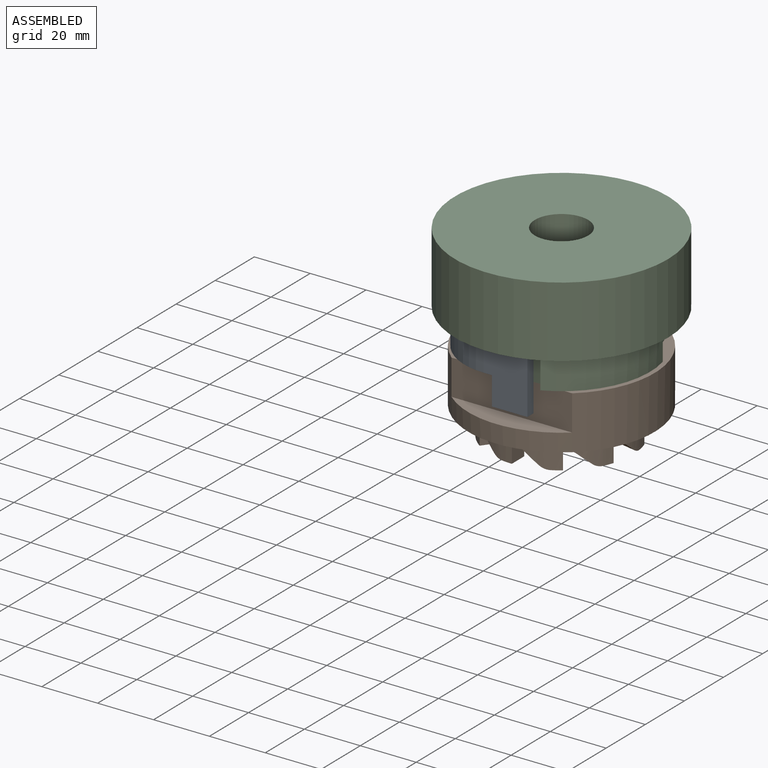
[diagram: assembled view]
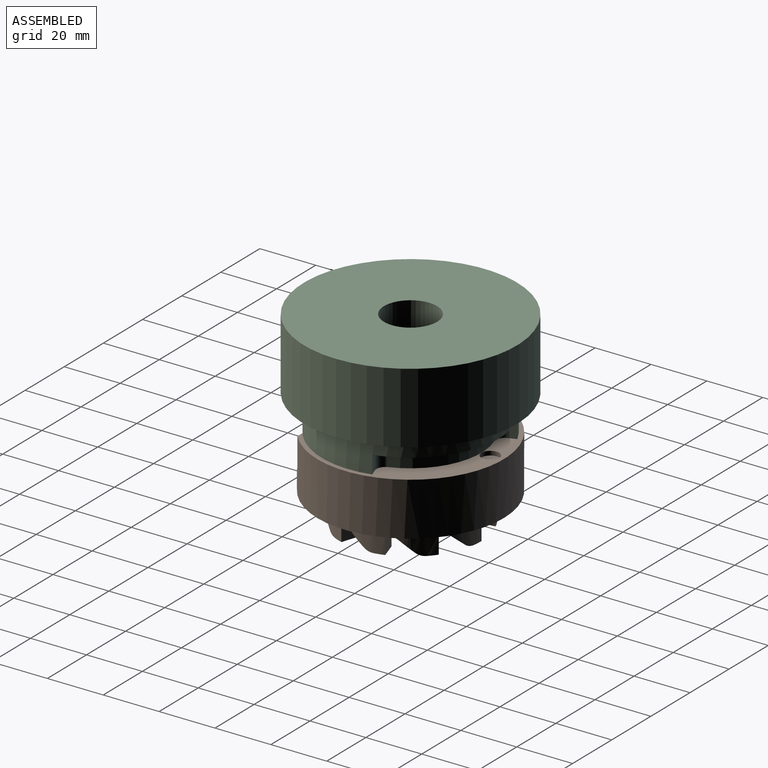
[diagram: assembled view, second angle]
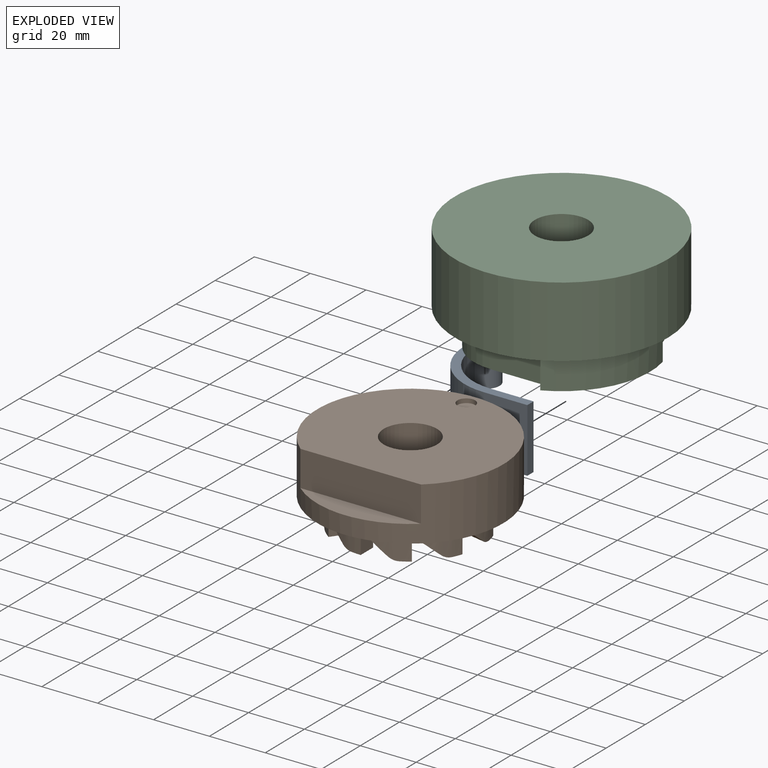
[diagram: exploded view]
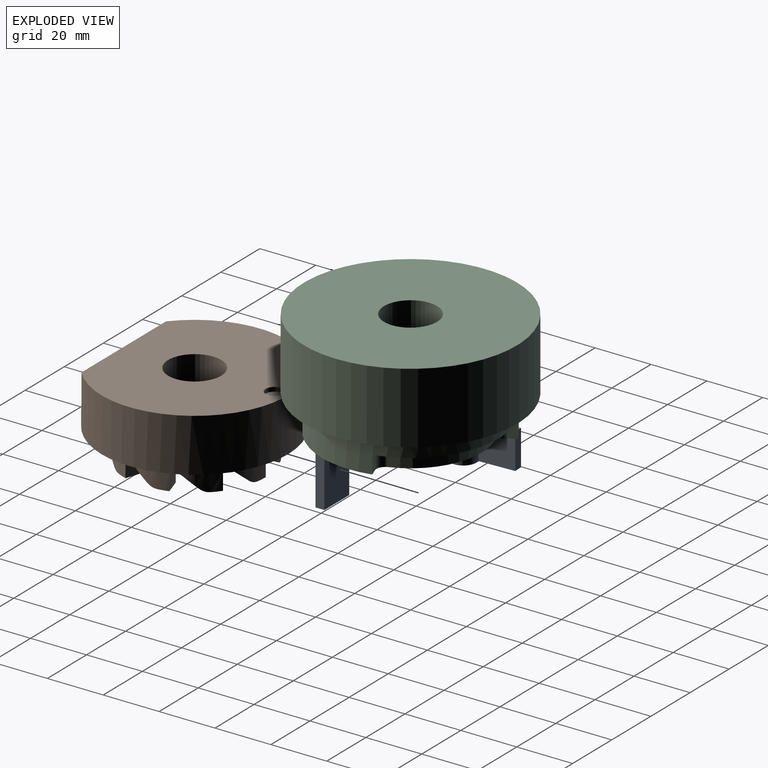
[diagram: exploded view, second angle]
ASSEMBLY  parts=3 mates=3
PART A: 17 faces, bbox 39.6x46x22.9 mm
  f0: plane 45.98x26.89mm, normal (0,0,-1), area 225.7mm2, adj f1,f2,f3,f4,f6,f7,f8,f9
  f1: plane 12.7x3.17mm, normal (-0.04,1,0), area 40.3mm2, adj f0,f2,f12,f14
  f2: plane 23.92x12.7mm, normal (-1,-0.04,0), area 304.1mm2, adj f0,f1,f3,f14
  f3: cylinder r=22.92mm len=22.9mm, axis (0,0,-1), area 444.5mm2, adj f0,f2,f4,f14
  f4: plane 22.86x15.65mm, normal (0,-1,0), area 327.8mm2, adj f0,f3,f5,f14,f15,f16
  f5: plane 22.86x3.18mm, normal (1,0,0), area 72.6mm2, adj f4,f6,f14,f16
  f6: plane 22.86x15.65mm, normal (0,1,0), area 327.8mm2, adj f0,f5,f7,f14,f15,f16
  f7: cylinder r=19.74mm len=19.73mm, axis (0,0,-1), area 382.9mm2, adj f0,f6,f8,f14
  f8: plane 12.7x1.72mm, normal (1,0.04,0), area 21.8mm2, adj f0,f7,f9,f14
  f9: plane 12.7x0.96mm, normal (0.04,-1,0), area 12.2mm2, adj f0,f8,f10,f14
  f10: cylinder r=4.76mm len=12.7mm, axis (0,0,-1), area 190mm2, adj f0,f9,f11,f14
  f11: plane 12.7x0.96mm, normal (-0.04,1,0), area 12.2mm2, adj f0,f10,f12,f14
  f12: plane 12.7x12.69mm, normal (1,0.04,0), area 161.3mm2, adj f0,f1,f11,f14
  f13: cylinder r=1.59mm len=12.7mm, axis (0,0,-1), area 126.7mm2, adj f0,f14
  f14: plane 45.98x39.59mm, normal (0,0,1), area 266mm2, adj f1,f2,f3,f4,f5,f6,f7,f8
  f15: plane 10.16x3.18mm, normal (-1,0,0), area 32.3mm2, adj f0,f4,f6,f16
  f16: plane 12.7x3.18mm, normal (0,0,-1), area 40.3mm2, adj f4,f5,f6,f15
PART B: 71 faces, bbox 66.7x66.7x28.6 mm
  f0: plane 5.61x3.86mm, normal (0,0,-1), area 3.1mm2, adj f17,f18,f24,f65
  f1: plane 6.09x2.74mm, normal (0,0,-1), area 3.1mm2, adj f17,f18,f60,f69
  f2: plane 6.28x2.11mm, normal (0,0,-1), area 3.1mm2, adj f17,f18,f55,f64
  f3: plane 5.23x4.39mm, normal (0,0,-1), area 3.1mm2, adj f17,f18,f50,f59
  f4: plane 6.35x0.82mm, normal (0,0,-1), area 3.1mm2, adj f17,f18,f45,f54
  f5: plane 5.61x3.86mm, normal (0,0,-1), area 3.1mm2, adj f17,f18,f40,f49
  f6: plane 6.09x2.74mm, normal (0,0,-1), area 3.1mm2, adj f17,f18,f35,f44
  f7: plane 6.28x2.11mm, normal (0,0,-1), area 3.1mm2, adj f17,f18,f30,f39
  f8: plane 5.23x4.39mm, normal (0,0,-1), area 3.1mm2, adj f17,f18,f25,f34
  f9: plane 6.35x0.82mm, normal (0,0,-1), area 3.1mm2, adj f17,f18,f20,f29
  f10: cylinder r=33.34mm len=66.68mm, axis (0,0,-1), area 3393.7mm2, adj f11,f12,f13,f14
  f11: plane 66.68x58.74mm, normal (0,0,1), area 2940.3mm2, adj f10,f14,f15,f70
  f12: plane 66.68x66.68mm, normal (0,0,-1), area 1464.7mm2, adj f10,f18
  f13: plane 43.18x7.94mm, normal (0,0,1), area 234.6mm2, adj f10,f14
  f14: plane 43.18x12.7mm, normal (0,1,0), area 548.4mm2, adj f10,f11,f13
  f15: cylinder r=3.17mm len=6.35mm, axis (0,0,1), area 30.4mm2, adj f11,f16
  f16: plane 6.35x6.35mm, normal (0,0,1), area 31.7mm2, adj f15
  f17: cylinder r=19.05mm len=38.1mm, axis (0,0,1), area 766.9mm2, adj f0,f1,f2,f3,f4,f5,f6,f7
  f18: cylinder r=25.4mm len=50.8mm, axis (0,0,1), area 1106.8mm2, adj f0,f1,f2,f3,f4,f5,f6,f7
  f19: plane 38.1x38.1mm, normal (0,0,-1), area 855.1mm2, adj f17,f70
  f20: plane 6.35x6.35mm, normal (1,0,0), area 40.3mm2, adj f9,f17,f18,f21
  f21: plane 6.35x3.59mm, normal (0,0,-1), area 11.8mm2, adj f17,f18,f20,f23
  f22: plane 7.88x7.33mm, normal (-0.55,0.32,-0.77), area 40.3mm2, adj f17,f18,f23,f24
  f23: cylinder r=5.08mm len=8.64mm, axis (-0.5,-0.87,0), area 24mm2, adj f17,f18,f21,f22
  f24: cylinder r=5.08mm len=7.2mm, axis (-0.5,-0.87,0), area 22.4mm2, adj f0,f17,f18,f22
  f25: plane 6.35x5.14mm, normal (0.81,0.59,0), area 40.3mm2, adj f8,f17,f18,f26
  f26: plane 7.04x3.79mm, normal (0,0,-1), area 11.8mm2, adj f17,f18,f25,f28
  f27: plane 7.86x5.41mm, normal (-0.64,-0.07,-0.77), area 40.3mm2, adj f17,f18,f28,f29
  f28: cylinder r=5.08mm len=8.39mm, axis (0.1,-0.99,0), area 24mm2, adj f17,f18,f26,f27
  f29: cylinder r=5.08mm len=6.74mm, axis (0.1,-0.99,0), area 22.4mm2, adj f9,f17,f18,f27
  f30: plane 6.35x6.04mm, normal (0.31,0.95,0), area 40.3mm2, adj f7,f17,f18,f31
  f31: plane 6.06x5.3mm, normal (0,0,-1), area 11.8mm2, adj f17,f18,f30,f33
  f32: plane 8.72x7.39mm, normal (-0.48,-0.43,-0.77), area 40.3mm2, adj f17,f18,f33,f34
  f33: cylinder r=5.08mm len=8.19mm, axis (0.67,-0.74,0), area 24mm2, adj f17,f18,f31,f32
  f34: cylinder r=5.08mm len=6.96mm, axis (0.67,-0.74,0), area 22.4mm2, adj f8,f17,f18,f32
  f35: plane 6.35x6.04mm, normal (-0.31,0.95,0), area 40.3mm2, adj f6,f17,f18,f36
  f36: plane 6.91x3.5mm, normal (0,0,-1), area 11.8mm2, adj f17,f18,f35,f38
  f37: plane 6.54x6.23mm, normal (-0.13,-0.63,-0.77), area 40.3mm2, adj f17,f18,f38,f39
  f38: cylinder r=5.08mm len=8.59mm, axis (0.98,-0.21,0), area 24mm2, adj f17,f18,f36,f37
  f39: cylinder r=5.08mm len=6.97mm, axis (0.98,-0.21,0), area 22.4mm2, adj f7,f17,f18,f37
  f40: plane 6.35x5.14mm, normal (-0.81,0.59,0), area 40.3mm2, adj f5,f17,f18,f41
  f41: plane 6.49x5.18mm, normal (0,0,-1), area 11.8mm2, adj f17,f18,f40,f43
  f42: plane 8.72x6.72mm, normal (0.26,-0.58,-0.77), area 40.3mm2, adj f17,f18,f43,f44
  f43: cylinder r=5.08mm len=8.72mm, axis (0.91,0.41,0), area 24mm2, adj f17,f18,f41,f42
  f44: cylinder r=5.08mm len=7.21mm, axis (0.91,0.41,0), area 22.4mm2, adj f6,f17,f18,f42
  f45: plane 6.35x6.35mm, normal (-1,0,0), area 40.3mm2, adj f4,f17,f18,f46
  f46: plane 6.35x3.59mm, normal (0,0,-1), area 11.8mm2, adj f17,f18,f45,f48
  f47: plane 7.88x7.33mm, normal (0.55,-0.32,-0.77), area 40.3mm2, adj f17,f18,f48,f49
  f48: cylinder r=5.08mm len=8.64mm, axis (0.5,0.87,0), area 24mm2, adj f17,f18,f46,f47
  f49: cylinder r=5.08mm len=7.2mm, axis (0.5,0.87,0), area 22.4mm2, adj f5,f17,f18,f47
  f50: plane 6.35x5.14mm, normal (-0.81,-0.59,0), area 40.3mm2, adj f3,f17,f18,f51
  f51: plane 7.04x3.79mm, normal (0,0,-1), area 11.8mm2, adj f17,f18,f50,f53
  f52: plane 7.86x5.41mm, normal (0.64,0.07,-0.77), area 40.3mm2, adj f17,f18,f53,f54
  f53: cylinder r=5.08mm len=8.39mm, axis (-0.1,0.99,0), area 24mm2, adj f17,f18,f51,f52
  f54: cylinder r=5.08mm len=6.74mm, axis (-0.1,0.99,0), area 22.4mm2, adj f4,f17,f18,f52
  f55: plane 6.35x6.04mm, normal (-0.31,-0.95,0), area 40.3mm2, adj f2,f17,f18,f56
  f56: plane 6.06x5.3mm, normal (0,0,-1), area 11.8mm2, adj f17,f18,f55,f58
  f57: plane 8.72x7.39mm, normal (0.48,0.43,-0.77), area 40.3mm2, adj f17,f18,f58,f59
  f58: cylinder r=5.08mm len=8.19mm, axis (-0.67,0.74,0), area 24mm2, adj f17,f18,f56,f57
  f59: cylinder r=5.08mm len=6.96mm, axis (-0.67,0.74,0), area 22.4mm2, adj f3,f17,f18,f57
  f60: plane 6.35x6.04mm, normal (0.31,-0.95,0), area 40.3mm2, adj f1,f17,f18,f61
  f61: plane 6.91x3.5mm, normal (0,0,-1), area 11.8mm2, adj f17,f18,f60,f63
  f62: plane 6.58x6.27mm, normal (0.13,0.63,-0.77), area 40.3mm2, adj f17,f18,f63,f64
  f63: cylinder r=5.08mm len=8.59mm, axis (-0.98,0.21,0), area 24mm2, adj f17,f18,f61,f62
  f64: cylinder r=5.08mm len=6.97mm, axis (-0.98,0.21,0), area 22.4mm2, adj f2,f17,f18,f62
  f65: plane 6.35x5.14mm, normal (0.81,-0.59,0), area 40.3mm2, adj f0,f17,f18,f66
  f66: plane 6.49x5.18mm, normal (0,0,-1), area 11.8mm2, adj f17,f18,f65,f68
  f67: plane 8.72x6.72mm, normal (-0.26,0.58,-0.77), area 40.3mm2, adj f17,f18,f68,f69
  f68: cylinder r=5.08mm len=8.72mm, axis (-0.91,-0.41,0), area 24mm2, adj f17,f18,f66,f67
  f69: cylinder r=5.08mm len=7.21mm, axis (-0.91,-0.41,0), area 22.4mm2, adj f1,f17,f18,f67
  f70: cylinder r=9.53mm len=19.05mm, axis (0,0,1), area 1140.1mm2, adj f11,f19
PART C: 20 faces, bbox 76.2x76.2x38.1 mm
  f0: cylinder r=31.75mm len=60.82mm, axis (0,0,1), area 1151mm2, adj f1,f2,f5,f10,f11,f12,f13
  f1: plane 58.67x57.67mm, normal (0,0,-1), area 2212.4mm2, adj f0,f5,f6,f7,f8,f9,f10,f12
  f2: plane 76.2x76.2mm, normal (0,0,-1), area 1734.3mm2, adj f0,f3,f5,f6,f7,f8,f9,f10
  f3: cylinder r=38.1mm len=76.2mm, axis (0,0,1), area 6080.5mm2, adj f2,f4
  f4: plane 76.2x76.2mm, normal (0,0,1), area 4275.3mm2, adj f3,f17
  f5: plane 12.7x11.75mm, normal (-1,0,0), area 149.2mm2, adj f0,f1,f2,f6
  f6: cylinder r=5.08mm len=12.7mm, axis (0,0,-1), area 202.7mm2, adj f1,f2,f5,f7
  f7: plane 12.7x1.27mm, normal (-1,0,0), area 16.1mm2, adj f1,f2,f6,f8
  f8: cylinder r=19.05mm len=19.05mm, axis (0,0,-1), area 380mm2, adj f1,f2,f7,f9
  f9: plane 19.35x12.7mm, normal (0,-1,0), area 245.8mm2, adj f1,f2,f8,f10
  f10: plane 12.7x3.67mm, normal (-0.94,-0.33,0), area 49.4mm2, adj f0,f1,f2,f9
  f11: plane 44.56x25.15mm, normal (0,0,-1), area 320.7mm2, adj f0,f12,f13,f14,f15,f16
  f12: plane 6.35x2.83mm, normal (0.94,0.34,0), area 19.2mm2, adj f0,f1,f11,f16
  f13: plane 6.35x2.83mm, normal (-0.34,0.94,0), area 19.2mm2, adj f0,f1,f11,f14
  f14: cylinder r=3.17mm len=6.35mm, axis (0,0,-1), area 31.7mm2, adj f1,f11,f13,f15
  f15: cylinder r=25.4mm len=32.56mm, axis (0,0,-1), area 253.4mm2, adj f1,f11,f14,f16
  f16: cylinder r=3.17mm len=6.35mm, axis (0,0,-1), area 31.7mm2, adj f1,f11,f12,f15
  f17: cylinder r=9.53mm len=38.1mm, axis (0,0,-1), area 2280.2mm2, adj f1,f4
  f18: cylinder r=1.59mm len=3.18mm, axis (0,0,-1), area 31.7mm2, adj f2,f19
  f19: plane 3.18x3.18mm, normal (0,0,-1), area 7.9mm2, adj f18
PLACE A at identity
PLACE B rot(axis=(0,0,1),180deg) t=(0,0,-19.05)mm
PLACE C at identity
MATE cylindrical A.f10 <-> C.f6  axis (0,0,1) through (-26.92,0,12.7)mm
MATE parallel B.f14 <-> C.f9  axis (0,-1,0) through (21.59,-25.4,0)mm
MATE cylindrical B.f17 <-> C.f0  axis (0,0,1) through (0,0,0)mm
